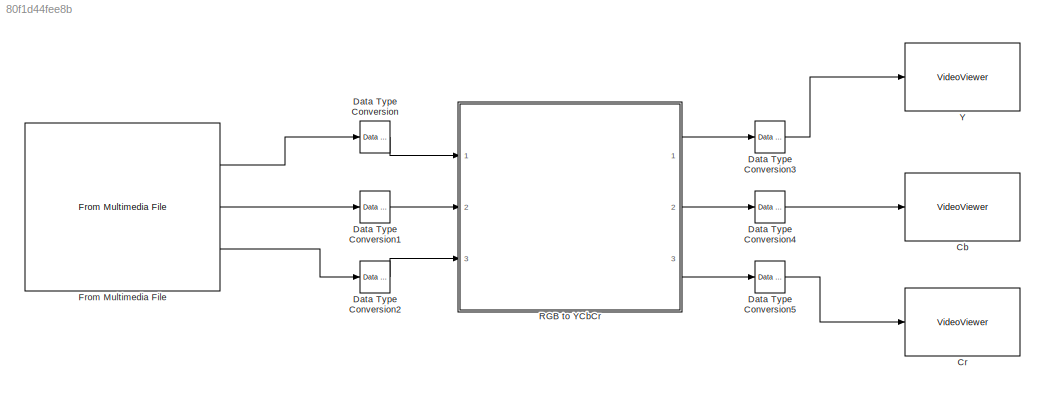
MODEL slx_80f1d44fee8b
KIND model
CONFIG AbsTol = auto
CONFIG FixedStep = auto
CONFIG MaxStep = auto
CONFIG MinStep = auto
CONFIG RelTol = 1e-3
CONFIG SampleTimeConstraint = Unconstrained
CONFIG Solver = VariableStepAuto
CONFIG SolverMode = Auto
CONFIG SolverName = VariableStepAuto
CONFIG StartTime = 0.0
CONFIG StopTime = 1
BLOCK [VideoViewer] Cb 
  FigPos = [523.4 526 487.2 356]
  Ports = [1]
  ScopeSpecificationString = vipscopes.VideoViewerScopeCfg('CurrentConfiguration', extmgr.ConfigurationSet(extmgr.Configuration('Core','General UI',true),extmgr.Configuration('Core','Source UI',true),extmgr.Configuration('Sources','WiredSimulink',true),extmgr.Configuration('Visuals','Video',true),extmgr.Configuration('Tools','Image Navigation Tools',true),extmgr.Configuration('Tools','Image Tool',true),extmgr.Configuration('T...<+105ch>
  colormapValue = gray(256)
BLOCK [VideoViewer] Cr 
  FigPos = [1036.2 531.6 464.8 360]
  Ports = [1]
  ScopeSpecificationString = vipscopes.VideoViewerScopeCfg('CurrentConfiguration', extmgr.ConfigurationSet(extmgr.Configuration('Core','General UI',true),extmgr.Configuration('Core','Source UI',true),extmgr.Configuration('Sources','WiredSimulink',true),extmgr.Configuration('Visuals','Video',true),extmgr.Configuration('Tools','Image Navigation Tools',true),extmgr.Configuration('Tools','Image Tool',true),extmgr.Configuration('T...<+108ch>
  colormapValue = gray(256)
BLOCK [Reference] Data Type Conversion  REF=ModelComposer/Data Type Conversion
  Ports = [1, 1]
  SourceBlock = ModelComposer/Data Type Conversion
  SourceType = Data Type Convert
BLOCK [Reference] Data Type Conversion1  REF=ModelComposer/Data Type Conversion
  Ports = [1, 1]
  SourceBlock = ModelComposer/Data Type Conversion
  SourceType = Data Type Convert
BLOCK [Reference] Data Type Conversion2  REF=ModelComposer/Data Type Conversion
  Ports = [1, 1]
  SourceBlock = ModelComposer/Data Type Conversion
  SourceType = Data Type Convert
BLOCK [Reference] Data Type Conversion3  REF=ModelComposer/Data Type Conversion
  Ports = [1, 1]
  SourceBlock = ModelComposer/Data Type Conversion
  SourceType = Data Type Convert
BLOCK [Reference] Data Type Conversion4  REF=ModelComposer/Data Type Conversion
  Ports = [1, 1]
  SourceBlock = ModelComposer/Data Type Conversion
  SourceType = Data Type Convert
BLOCK [Reference] Data Type Conversion5  REF=ModelComposer/Data Type Conversion
  Ports = [1, 1]
  SourceBlock = ModelComposer/Data Type Conversion
  SourceType = Data Type Convert
BLOCK [Reference] From Multimedia File  REF=dspvision/From Multimedia File
  Ports = [0, 3]
  SourceBlock = dspvision/From Multimedia File
  SourceType = From Multimedia File
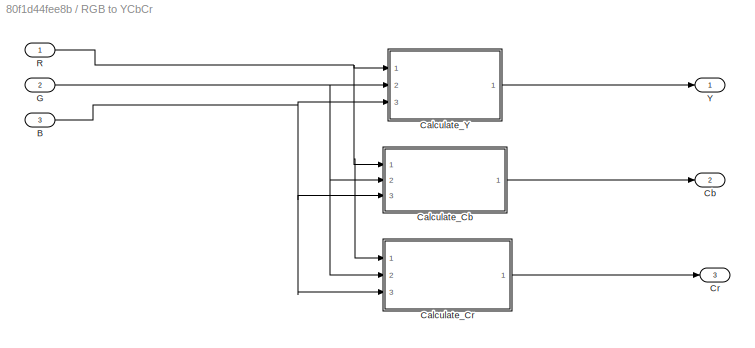
BLOCK [SubSystem] RGB to YCbCr
  Ports = [3, 3]
  RequestExecContextInheritance = off
  Variant = off
BLOCK [Inport] RGB to YCbCr/B
  IconDisplay = Port number
  Port = 3
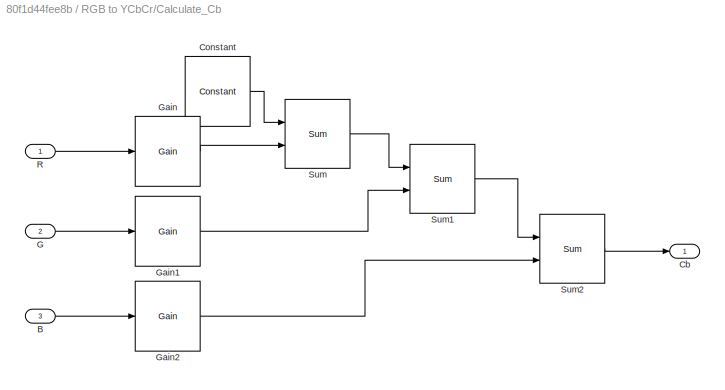
BLOCK [SubSystem] RGB to YCbCr/Calculate_Cb 
  Ports = [3, 1]
  RequestExecContextInheritance = off
  Variant = off
BLOCK [Inport] RGB to YCbCr/Calculate_Cb /B
  IconDisplay = Port number
  Port = 3
BLOCK [Outport] RGB to YCbCr/Calculate_Cb /Cb 
  IconDisplay = Port number
BLOCK [Reference] RGB to YCbCr/Calculate_Cb /Constant  REF=ModelComposer/Constant
  Description = Performs multiplication
  Ports = [0, 1]
  SourceBlock = ModelComposer/Constant
  SourceType = Constant
BLOCK [Inport] RGB to YCbCr/Calculate_Cb /G 
  IconDisplay = Port number
  Port = 2
BLOCK [Reference] RGB to YCbCr/Calculate_Cb /Gain  REF=ModelComposer/Gain
  Description = Performs multiplication
  Ports = [1, 1]
  SourceBlock = ModelComposer/Gain
  SourceType = Gain
BLOCK [Reference] RGB to YCbCr/Calculate_Cb /Gain1  REF=ModelComposer/Gain
  Description = Performs multiplication
  Ports = [1, 1]
  SourceBlock = ModelComposer/Gain
  SourceType = Gain
BLOCK [Reference] RGB to YCbCr/Calculate_Cb /Gain2  REF=ModelComposer/Gain
  Description = Performs multiplication
  Ports = [1, 1]
  SourceBlock = ModelComposer/Gain
  SourceType = Gain
BLOCK [Inport] RGB to YCbCr/Calculate_Cb /R 
  IconDisplay = Port number
BLOCK [Reference] RGB to YCbCr/Calculate_Cb /Sum  REF=ModelComposer/Sum
  Ports = [2, 1]
  SourceBlock = ModelComposer/Sum
  SourceType = Sum
BLOCK [Reference] RGB to YCbCr/Calculate_Cb /Sum1  REF=ModelComposer/Sum
  Ports = [2, 1]
  SourceBlock = ModelComposer/Sum
  SourceType = Sum
BLOCK [Reference] RGB to YCbCr/Calculate_Cb /Sum2  REF=ModelComposer/Sum
  Ports = [2, 1]
  SourceBlock = ModelComposer/Sum
  SourceType = Sum
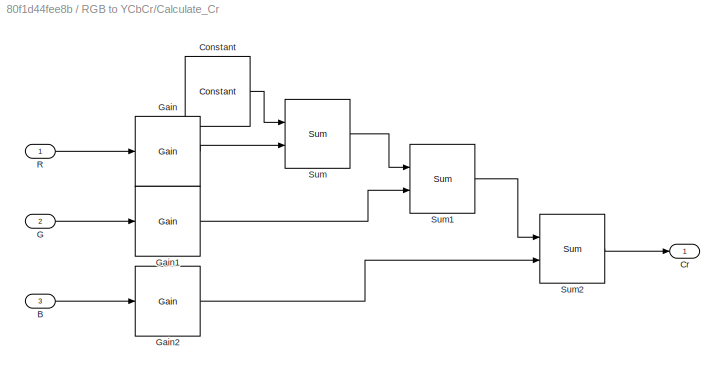
BLOCK [SubSystem] RGB to YCbCr/Calculate_Cr
  Ports = [3, 1]
  RequestExecContextInheritance = off
  Variant = off
BLOCK [Inport] RGB to YCbCr/Calculate_Cr/B
  IconDisplay = Port number
  Port = 3
BLOCK [Reference] RGB to YCbCr/Calculate_Cr/Constant  REF=ModelComposer/Constant
  Description = Performs multiplication
  Ports = [0, 1]
  SourceBlock = ModelComposer/Constant
  SourceType = Constant
BLOCK [Outport] RGB to YCbCr/Calculate_Cr/Cr
  IconDisplay = Port number
BLOCK [Inport] RGB to YCbCr/Calculate_Cr/G 
  IconDisplay = Port number
  Port = 2
BLOCK [Reference] RGB to YCbCr/Calculate_Cr/Gain  REF=ModelComposer/Gain
  Description = Performs multiplication
  Ports = [1, 1]
  SourceBlock = ModelComposer/Gain
  SourceType = Gain
BLOCK [Reference] RGB to YCbCr/Calculate_Cr/Gain1  REF=ModelComposer/Gain
  Description = Performs multiplication
  Ports = [1, 1]
  SourceBlock = ModelComposer/Gain
  SourceType = Gain
BLOCK [Reference] RGB to YCbCr/Calculate_Cr/Gain2  REF=ModelComposer/Gain
  Description = Performs multiplication
  Ports = [1, 1]
  SourceBlock = ModelComposer/Gain
  SourceType = Gain
BLOCK [Inport] RGB to YCbCr/Calculate_Cr/R 
  IconDisplay = Port number
BLOCK [Reference] RGB to YCbCr/Calculate_Cr/Sum  REF=ModelComposer/Sum
  Ports = [2, 1]
  SourceBlock = ModelComposer/Sum
  SourceType = Sum
BLOCK [Reference] RGB to YCbCr/Calculate_Cr/Sum1  REF=ModelComposer/Sum
  Ports = [2, 1]
  SourceBlock = ModelComposer/Sum
  SourceType = Sum
BLOCK [Reference] RGB to YCbCr/Calculate_Cr/Sum2  REF=ModelComposer/Sum
  Ports = [2, 1]
  SourceBlock = ModelComposer/Sum
  SourceType = Sum
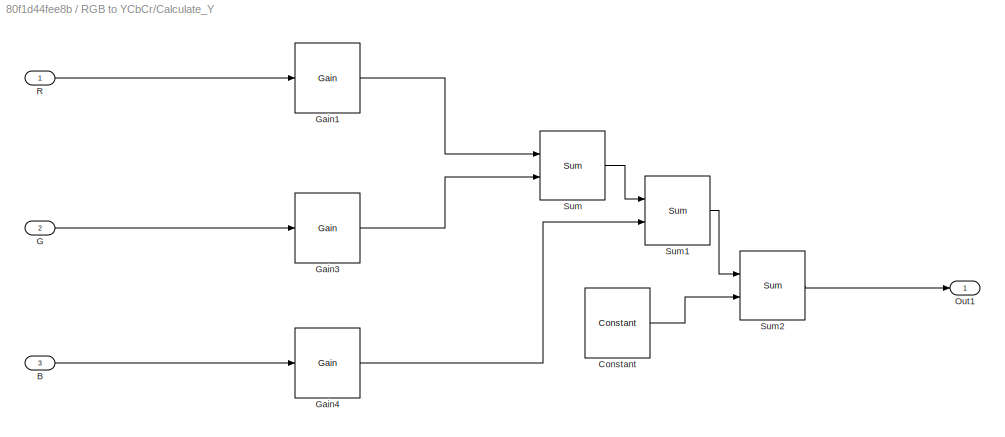
BLOCK [SubSystem] RGB to YCbCr/Calculate_Y 
  Ports = [3, 1]
  RequestExecContextInheritance = off
  Variant = off
BLOCK [Inport] RGB to YCbCr/Calculate_Y /B 
  IconDisplay = Port number
  Port = 3
BLOCK [Reference] RGB to YCbCr/Calculate_Y /Constant  REF=ModelComposer/Constant
  Description = Performs multiplication
  Ports = [0, 1]
  SourceBlock = ModelComposer/Constant
  SourceType = Constant
BLOCK [Inport] RGB to YCbCr/Calculate_Y /G 
  IconDisplay = Port number
  Port = 2
BLOCK [Reference] RGB to YCbCr/Calculate_Y /Gain1  REF=ModelComposer/Gain
  Description = Performs multiplication
  Ports = [1, 1]
  SourceBlock = ModelComposer/Gain
  SourceType = Gain
BLOCK [Reference] RGB to YCbCr/Calculate_Y /Gain3  REF=ModelComposer/Gain
  Description = Performs multiplication
  Ports = [1, 1]
  SourceBlock = ModelComposer/Gain
  SourceType = Gain
BLOCK [Reference] RGB to YCbCr/Calculate_Y /Gain4  REF=ModelComposer/Gain
  Description = Performs multiplication
  Ports = [1, 1]
  SourceBlock = ModelComposer/Gain
  SourceType = Gain
BLOCK [Outport] RGB to YCbCr/Calculate_Y /Out1
  IconDisplay = Port number
BLOCK [Inport] RGB to YCbCr/Calculate_Y /R 
  IconDisplay = Port number
BLOCK [Reference] RGB to YCbCr/Calculate_Y /Sum  REF=ModelComposer/Sum
  Ports = [2, 1]
  SourceBlock = ModelComposer/Sum
  SourceType = Sum
BLOCK [Reference] RGB to YCbCr/Calculate_Y /Sum1  REF=ModelComposer/Sum
  Ports = [2, 1]
  SourceBlock = ModelComposer/Sum
  SourceType = Sum
BLOCK [Reference] RGB to YCbCr/Calculate_Y /Sum2  REF=ModelComposer/Sum
  Ports = [2, 1]
  SourceBlock = ModelComposer/Sum
  SourceType = Sum
BLOCK [Outport] RGB to YCbCr/Cb
  IconDisplay = Port number
  Port = 2
BLOCK [Outport] RGB to YCbCr/Cr
  IconDisplay = Port number
  Port = 3
BLOCK [Inport] RGB to YCbCr/G
  IconDisplay = Port number
  Port = 2
BLOCK [Inport] RGB to YCbCr/R
  IconDisplay = Port number
BLOCK [Outport] RGB to YCbCr/Y
  IconDisplay = Port number
BLOCK [VideoViewer] Y
  FigPos = [32.2 527.6 464 357.6]
  Ports = [1]
  ScopeSpecificationString = vipscopes.VideoViewerScopeCfg('CurrentConfiguration', extmgr.ConfigurationSet(extmgr.Configuration('Core','General UI',true),extmgr.Configuration('Core','Source UI',true),extmgr.Configuration('Sources','WiredSimulink',true),extmgr.Configuration('Visuals','Video',true),extmgr.Configuration('Tools','Image Navigation Tools',true),extmgr.Configuration('Tools','Image Tool',true),extmgr.Configuration('T...<+106ch>
  colormapValue = gray(256)
LINE Data Type Conversion1:1 -> RGB to YCbCr:2
LINE Data Type Conversion2:1 -> RGB to YCbCr:3
LINE Data Type Conversion3:1 -> Y:1
LINE Data Type Conversion4:1 -> Cb :1
LINE Data Type Conversion5:1 -> Cr :1
LINE Data Type Conversion:1 -> RGB to YCbCr:1
LINE From Multimedia File:1 -> Data Type Conversion:1
LINE From Multimedia File:2 -> Data Type Conversion1:1
LINE From Multimedia File:3 -> Data Type Conversion2:1
NET RGB to YCbCr/B:1 -> RGB to YCbCr/Calculate_Cb :3, RGB to YCbCr/Calculate_Cr:3, RGB to YCbCr/Calculate_Y :3
LINE RGB to YCbCr/Calculate_Cb /B:1 -> RGB to YCbCr/Calculate_Cb /Gain2:1
LINE RGB to YCbCr/Calculate_Cb /Constant:1 -> RGB to YCbCr/Calculate_Cb /Sum:1
LINE RGB to YCbCr/Calculate_Cb /G :1 -> RGB to YCbCr/Calculate_Cb /Gain1:1
LINE RGB to YCbCr/Calculate_Cb /Gain1:1 -> RGB to YCbCr/Calculate_Cb /Sum1:2
LINE RGB to YCbCr/Calculate_Cb /Gain2:1 -> RGB to YCbCr/Calculate_Cb /Sum2:2
LINE RGB to YCbCr/Calculate_Cb /Gain:1 -> RGB to YCbCr/Calculate_Cb /Sum:2
LINE RGB to YCbCr/Calculate_Cb /R :1 -> RGB to YCbCr/Calculate_Cb /Gain:1
LINE RGB to YCbCr/Calculate_Cb /Sum1:1 -> RGB to YCbCr/Calculate_Cb /Sum2:1
LINE RGB to YCbCr/Calculate_Cb /Sum2:1 -> RGB to YCbCr/Calculate_Cb /Cb :1
LINE RGB to YCbCr/Calculate_Cb /Sum:1 -> RGB to YCbCr/Calculate_Cb /Sum1:1
LINE RGB to YCbCr/Calculate_Cb :1 -> RGB to YCbCr/Cb:1
LINE RGB to YCbCr/Calculate_Cr/B:1 -> RGB to YCbCr/Calculate_Cr/Gain2:1
LINE RGB to YCbCr/Calculate_Cr/Constant:1 -> RGB to YCbCr/Calculate_Cr/Sum:1
LINE RGB to YCbCr/Calculate_Cr/G :1 -> RGB to YCbCr/Calculate_Cr/Gain1:1
LINE RGB to YCbCr/Calculate_Cr/Gain1:1 -> RGB to YCbCr/Calculate_Cr/Sum1:2
LINE RGB to YCbCr/Calculate_Cr/Gain2:1 -> RGB to YCbCr/Calculate_Cr/Sum2:2
LINE RGB to YCbCr/Calculate_Cr/Gain:1 -> RGB to YCbCr/Calculate_Cr/Sum:2
LINE RGB to YCbCr/Calculate_Cr/R :1 -> RGB to YCbCr/Calculate_Cr/Gain:1
LINE RGB to YCbCr/Calculate_Cr/Sum1:1 -> RGB to YCbCr/Calculate_Cr/Sum2:1
LINE RGB to YCbCr/Calculate_Cr/Sum2:1 -> RGB to YCbCr/Calculate_Cr/Cr:1
LINE RGB to YCbCr/Calculate_Cr/Sum:1 -> RGB to YCbCr/Calculate_Cr/Sum1:1
LINE RGB to YCbCr/Calculate_Cr:1 -> RGB to YCbCr/Cr:1
LINE RGB to YCbCr/Calculate_Y /B :1 -> RGB to YCbCr/Calculate_Y /Gain4:1
LINE RGB to YCbCr/Calculate_Y /Constant:1 -> RGB to YCbCr/Calculate_Y /Sum2:2
LINE RGB to YCbCr/Calculate_Y /G :1 -> RGB to YCbCr/Calculate_Y /Gain3:1
LINE RGB to YCbCr/Calculate_Y /Gain1:1 -> RGB to YCbCr/Calculate_Y /Sum:1
LINE RGB to YCbCr/Calculate_Y /Gain3:1 -> RGB to YCbCr/Calculate_Y /Sum:2
LINE RGB to YCbCr/Calculate_Y /Gain4:1 -> RGB to YCbCr/Calculate_Y /Sum1:2
LINE RGB to YCbCr/Calculate_Y /R :1 -> RGB to YCbCr/Calculate_Y /Gain1:1
LINE RGB to YCbCr/Calculate_Y /Sum1:1 -> RGB to YCbCr/Calculate_Y /Sum2:1
LINE RGB to YCbCr/Calculate_Y /Sum2:1 -> RGB to YCbCr/Calculate_Y /Out1:1
LINE RGB to YCbCr/Calculate_Y /Sum:1 -> RGB to YCbCr/Calculate_Y /Sum1:1
LINE RGB to YCbCr/Calculate_Y :1 -> RGB to YCbCr/Y:1
NET RGB to YCbCr/G:1 -> RGB to YCbCr/Calculate_Cb :2, RGB to YCbCr/Calculate_Cr:2, RGB to YCbCr/Calculate_Y :2
NET RGB to YCbCr/R:1 -> RGB to YCbCr/Calculate_Cb :1, RGB to YCbCr/Calculate_Cr:1, RGB to YCbCr/Calculate_Y :1
LINE RGB to YCbCr:1 -> Data Type Conversion3:1
LINE RGB to YCbCr:2 -> Data Type Conversion4:1
LINE RGB to YCbCr:3 -> Data Type Conversion5:1
note: NET lines group one-source signal fan-out (src -> all destinations, sorted); 1:1 wires keep LINE
